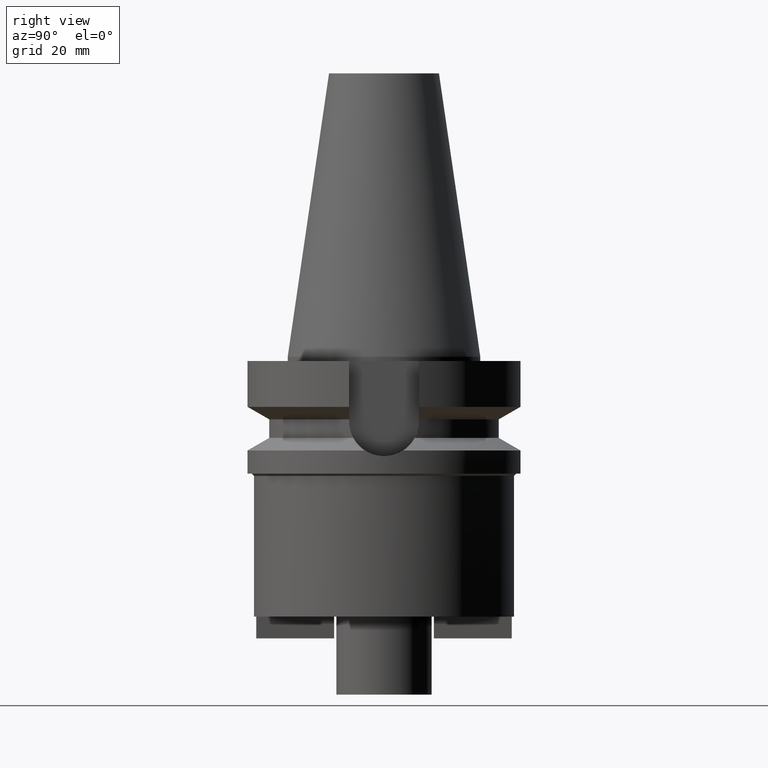
[diagram: clean part render]
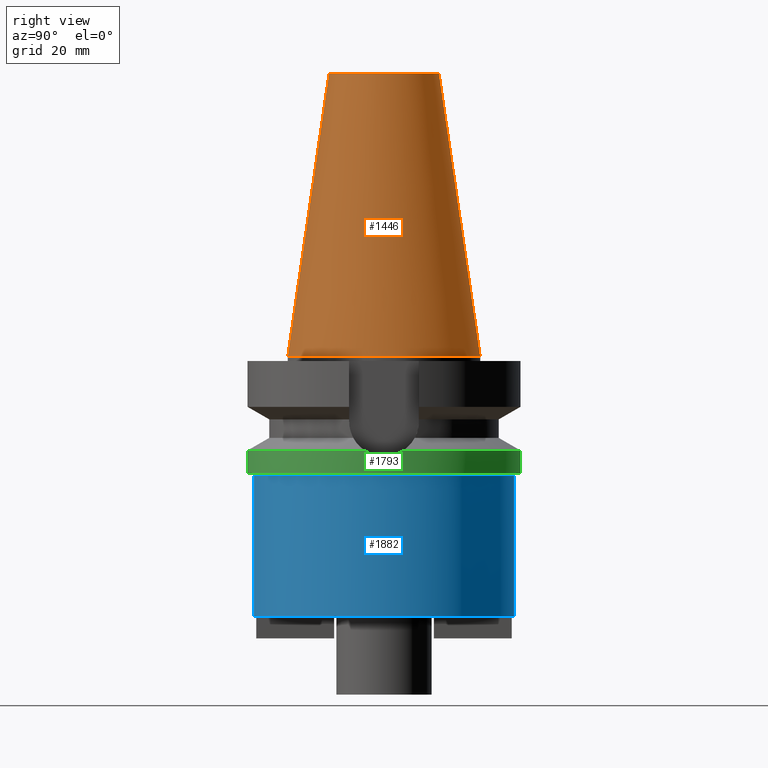
[diagram: same view with three faces highlighted in distinct colors, each labeled with its STEP entity id]
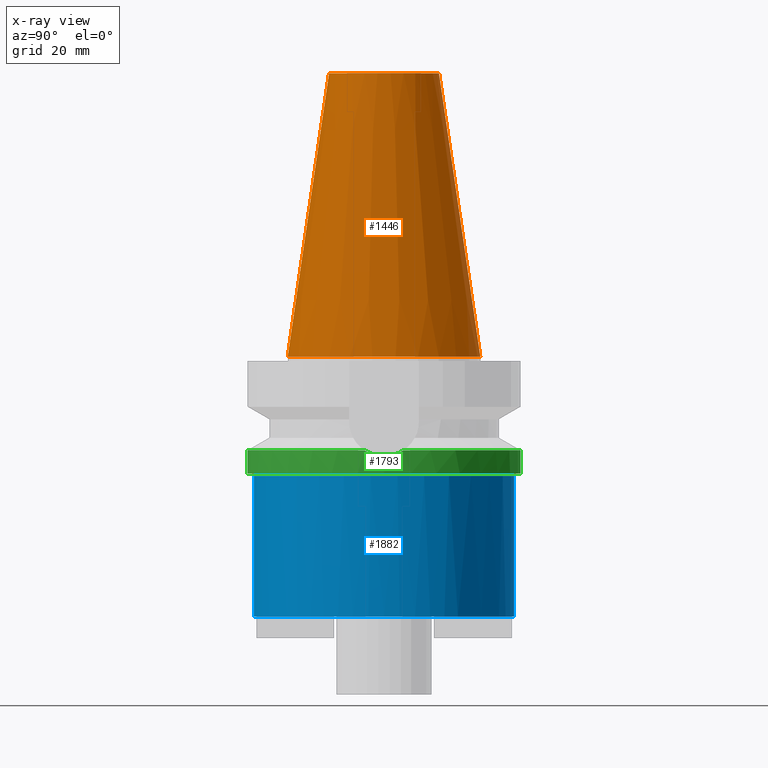
[diagram: x-ray of the same camera — body ghosted, the three highlighted faces saturated]
A machine part, right view with three faces highlighted in distinct colors.
The next image is the same camera in x-ray (body ghosted, the three faces saturated) — at least one of them is partly hidden behind the body in this view.
Their STEP definitions:

[orange] entity #1446 — the highlighted conical surface has half-angle 8.297 deg.
#26=CARTESIAN_POINT('',(0.E0,1.625106302469E-14,6.54E1));
#27=DIRECTION('',(0.E0,0.E0,-1.E0));
#28=DIRECTION('',(0.E0,1.E0,0.E0));
#29=AXIS2_PLACEMENT_3D('',#26,#27,#28);
#50=DIRECTION('',(0.E0,-1.443043893540E-1,-9.895333461856E-1));
#51=VECTOR('',#50,6.609175956738E1);
#52=CARTESIAN_POINT('',(0.E0,-1.268766899430E1,6.54E1));
#53=LINE('',#52,#51);
#65=DIRECTION('',(0.E0,1.443043893540E-1,-9.895333461856E-1));
#66=VECTOR('',#65,6.609175956738E1);
#67=CARTESIAN_POINT('',(0.E0,1.268766899430E1,6.54E1));
#68=LINE('',#67,#66);
#72=CARTESIAN_POINT('',(0.E0,1.625106302469E-14,2.842170943040E-14));
#73=DIRECTION('',(0.E0,0.E0,-1.E0));
#74=DIRECTION('',(0.E0,1.E0,0.E0));
#75=AXIS2_PLACEMENT_3D('',#72,#73,#74);
#1208=CARTESIAN_POINT('',(0.E0,-1.268766899430E1,6.54E1));
#1209=CARTESIAN_POINT('',(0.E0,1.268766899430E1,6.54E1));
#1210=VERTEX_POINT('',#1208);
#1211=VERTEX_POINT('',#1209);
#1373=CARTESIAN_POINT('',(0.E0,2.2225E1,8.526512829121E-14));
#1374=VERTEX_POINT('',#1373);
#1375=CARTESIAN_POINT('',(0.E0,-2.2225E1,8.526512829121E-14));
#1376=VERTEX_POINT('',#1375);
#1434=CARTESIAN_POINT('',(0.E0,1.625106302469E-14,3.27E1));
#1435=DIRECTION('',(0.E0,0.E0,-1.E0));
#1436=DIRECTION('',(0.E0,-1.E0,0.E0));
#1437=AXIS2_PLACEMENT_3D('',#1434,#1435,#1436);
#1438=CONICAL_SURFACE('',#1437,1.745633449715E1,8.297E0);
#1439=ORIENTED_EDGE('',*,*,#1424,.T.);
#1441=ORIENTED_EDGE('',*,*,#1440,.T.);
#1442=ORIENTED_EDGE('',*,*,#1427,.F.);
#1443=ORIENTED_EDGE('',*,*,#1408,.F.);
#1444=EDGE_LOOP('',(#1439,#1441,#1442,#1443));
#1445=FACE_OUTER_BOUND('',#1444,.F.);
#30=CIRCLE('',#29,1.268766899430E1);
#76=CIRCLE('',#75,2.2225E1);
#1408=EDGE_CURVE('',#1211,#1210,#30,.T.);
#1424=EDGE_CURVE('',#1211,#1374,#68,.T.);
#1427=EDGE_CURVE('',#1210,#1376,#53,.T.);
#1440=EDGE_CURVE('',#1374,#1376,#76,.T.);
#1446=ADVANCED_FACE('',(#1445),#1438,.T.);

[blue] entity #1882 — the highlighted cylindrical surface (partial cylindrical patch) has radius 30 mm, axis along (0, 0, -1).
#682=CARTESIAN_POINT('',(0.E0,0.E0,-2.75E1));
#683=DIRECTION('',(0.E0,0.E0,-1.E0));
#684=DIRECTION('',(0.E0,1.E0,0.E0));
#685=AXIS2_PLACEMENT_3D('',#682,#683,#684);
#690=DIRECTION('',(0.E0,0.E0,-1.E0));
#691=VECTOR('',#690,3.25E1);
#692=CARTESIAN_POINT('',(0.E0,3.E1,-2.75E1));
#693=LINE('',#692,#691);
#697=DIRECTION('',(0.E0,0.E0,-1.E0));
#698=VECTOR('',#697,3.25E1);
#699=CARTESIAN_POINT('',(0.E0,-3.E1,-2.75E1));
#700=LINE('',#699,#698);
#704=CARTESIAN_POINT('',(0.E0,2.113372981289E-14,-6.E1));
#705=DIRECTION('',(0.E0,0.E0,1.E0));
#706=DIRECTION('',(0.E0,-1.E0,0.E0));
#707=AXIS2_PLACEMENT_3D('',#704,#705,#706);
#1268=CARTESIAN_POINT('',(0.E0,-3.E1,-6.E1));
#1269=CARTESIAN_POINT('',(0.E0,3.E1,-6.E1));
#1270=VERTEX_POINT('',#1268);
#1271=VERTEX_POINT('',#1269);
#1288=CARTESIAN_POINT('',(0.E0,3.E1,-2.75E1));
#1289=VERTEX_POINT('',#1288);
#1290=CARTESIAN_POINT('',(0.E0,-3.E1,-2.75E1));
#1291=VERTEX_POINT('',#1290);
#1868=CARTESIAN_POINT('',(0.E0,2.113372981289E-14,7.257E1));
#1869=DIRECTION('',(0.E0,0.E0,-1.E0));
#1870=DIRECTION('',(0.E0,-1.E0,0.E0));
#1871=AXIS2_PLACEMENT_3D('',#1868,#1869,#1870);
#1872=CYLINDRICAL_SURFACE('',#1871,3.E1);
#1874=ORIENTED_EDGE('',*,*,#1873,.T.);
#1876=ORIENTED_EDGE('',*,*,#1875,.F.);
#1878=ORIENTED_EDGE('',*,*,#1877,.F.);
#1879=ORIENTED_EDGE('',*,*,#1861,.F.);
#1880=EDGE_LOOP('',(#1874,#1876,#1878,#1879));
#1881=FACE_OUTER_BOUND('',#1880,.F.);
#686=CIRCLE('',#685,3.E1);
#708=CIRCLE('',#707,3.E1);
#1861=EDGE_CURVE('',#1289,#1291,#686,.T.);
#1873=EDGE_CURVE('',#1289,#1271,#693,.T.);
#1875=EDGE_CURVE('',#1270,#1271,#708,.T.);
#1877=EDGE_CURVE('',#1291,#1270,#700,.T.);
#1882=ADVANCED_FACE('',(#1881),#1872,.T.);

[green] entity #1793 — the highlighted cylindrical surface (partial cylindrical patch) has radius 31.5 mm, axis along (0, 0, -1).
#497=CARTESIAN_POINT('',(0.E0,0.E0,-2.163449434733E1));
#498=DIRECTION('',(0.E0,0.E0,-1.E0));
#499=DIRECTION('',(9.898094849553E-1,-1.423979757319E-1,0.E0));
#500=AXIS2_PLACEMENT_3D('',#497,#498,#499);
#538=CARTESIAN_POINT('',(3.117899877609E1,-4.485536235554E0,-2.163449434733E1));
#539=CARTESIAN_POINT('',(3.124369080524E1,-4.035861415951E0,-2.193624233196E1));
#540=CARTESIAN_POINT('',(3.135874964355E1,-3.100296799934E0,-2.243556869763E1));
#541=CARTESIAN_POINT('',(3.147361214504E1,-1.571010238598E0,-2.289773023091E1));
#542=CARTESIAN_POINT('',(3.15E1,-5.301810613964E-1,-2.3E1));
#543=CARTESIAN_POINT('',(3.15E1,0.E0,-2.3E1));
#548=CARTESIAN_POINT('',(3.15E1,0.E0,-2.3E1));
#549=CARTESIAN_POINT('',(3.15E1,5.302874392810E-1,-2.3E1));
#550=CARTESIAN_POINT('',(3.147360169555E1,1.571257160899E0,-2.289768897754E1));
#551=CARTESIAN_POINT('',(3.135872258253E1,3.100551592242E0,-2.243545751767E1));
#552=CARTESIAN_POINT('',(3.124367674355E1,4.035959158866E0,-2.193617674294E1));
#553=CARTESIAN_POINT('',(3.117899877609E1,4.485536235554E0,-2.163449434733E1));
#558=DIRECTION('',(0.E0,1.099151708819E-13,-1.E0));
#559=VECTOR('',#558,5.365505652669E0);
#560=CARTESIAN_POINT('',(0.E0,3.15E1,-2.163449434733E1));
#561=LINE('',#560,#559);
#573=CARTESIAN_POINT('',(0.E0,0.E0,-2.163449434733E1));
#574=DIRECTION('',(0.E0,0.E0,-1.E0));
#575=DIRECTION('',(0.E0,1.E0,0.E0));
#576=AXIS2_PLACEMENT_3D('',#573,#574,#575);
#621=DIRECTION('',(0.E0,-1.105773104655E-13,-1.E0));
#622=VECTOR('',#621,5.365505652669E0);
#623=CARTESIAN_POINT('',(0.E0,-3.15E1,-2.163449434733E1));
#624=LINE('',#623,#622);
#628=CARTESIAN_POINT('',(0.E0,2.113372981289E-14,-2.7E1));
#629=DIRECTION('',(0.E0,0.E0,1.E0));
#630=DIRECTION('',(0.E0,-1.E0,0.E0));
#631=AXIS2_PLACEMENT_3D('',#628,#629,#630);
#1296=CARTESIAN_POINT('',(0.E0,-3.15E1,-2.7E1));
#1297=CARTESIAN_POINT('',(0.E0,3.15E1,-2.7E1));
#1298=VERTEX_POINT('',#1296);
#1299=VERTEX_POINT('',#1297);
#1300=VERTEX_POINT('',#548);
#1301=VERTEX_POINT('',#553);
#1302=VERTEX_POINT('',#538);
#1303=CARTESIAN_POINT('',(0.E0,3.15E1,-2.163449434733E1));
#1304=VERTEX_POINT('',#1303);
#1305=CARTESIAN_POINT('',(0.E0,-3.15E1,-2.163449434733E1));
#1306=VERTEX_POINT('',#1305);
#1775=CARTESIAN_POINT('',(0.E0,2.113372981289E-14,7.257E1));
#1776=DIRECTION('',(0.E0,0.E0,-1.E0));
#1777=DIRECTION('',(0.E0,-1.E0,0.E0));
#1778=AXIS2_PLACEMENT_3D('',#1775,#1776,#1777);
#1779=CYLINDRICAL_SURFACE('',#1778,3.15E1);
#1780=ORIENTED_EDGE('',*,*,#1761,.T.);
#1781=ORIENTED_EDGE('',*,*,#1759,.T.);
#1783=ORIENTED_EDGE('',*,*,#1782,.F.);
#1785=ORIENTED_EDGE('',*,*,#1784,.T.);
#1787=ORIENTED_EDGE('',*,*,#1786,.F.);
#1789=ORIENTED_EDGE('',*,*,#1788,.F.);
#1790=ORIENTED_EDGE('',*,*,#1747,.F.);
#1791=EDGE_LOOP('',(#1780,#1781,#1783,#1785,#1787,#1789,#1790));
#1792=FACE_OUTER_BOUND('',#1791,.F.);
#501=CIRCLE('',#500,3.15E1);
#544=B_SPLINE_CURVE_WITH_KNOTS('',3,(#538,#539,#540,#541,#542,#543),
.UNSPECIFIED.,.F.,.F.,(4,1,1,4),(0.E0,3.333333333333E-1,6.666666666667E-1,1.E0),
.UNSPECIFIED.);
#554=B_SPLINE_CURVE_WITH_KNOTS('',3,(#548,#549,#550,#551,#552,#553),
.UNSPECIFIED.,.F.,.F.,(4,1,1,4),(0.E0,3.333333333333E-1,6.666666666667E-1,1.E0),
.UNSPECIFIED.);
#577=CIRCLE('',#576,3.15E1);
#632=CIRCLE('',#631,3.15E1);
#1747=EDGE_CURVE('',#1302,#1306,#501,.T.);
#1759=EDGE_CURVE('',#1300,#1301,#554,.T.);
#1761=EDGE_CURVE('',#1302,#1300,#544,.T.);
#1782=EDGE_CURVE('',#1304,#1301,#577,.T.);
#1784=EDGE_CURVE('',#1304,#1299,#561,.T.);
#1786=EDGE_CURVE('',#1298,#1299,#632,.T.);
#1788=EDGE_CURVE('',#1306,#1298,#624,.T.);
#1793=ADVANCED_FACE('',(#1792),#1779,.T.);